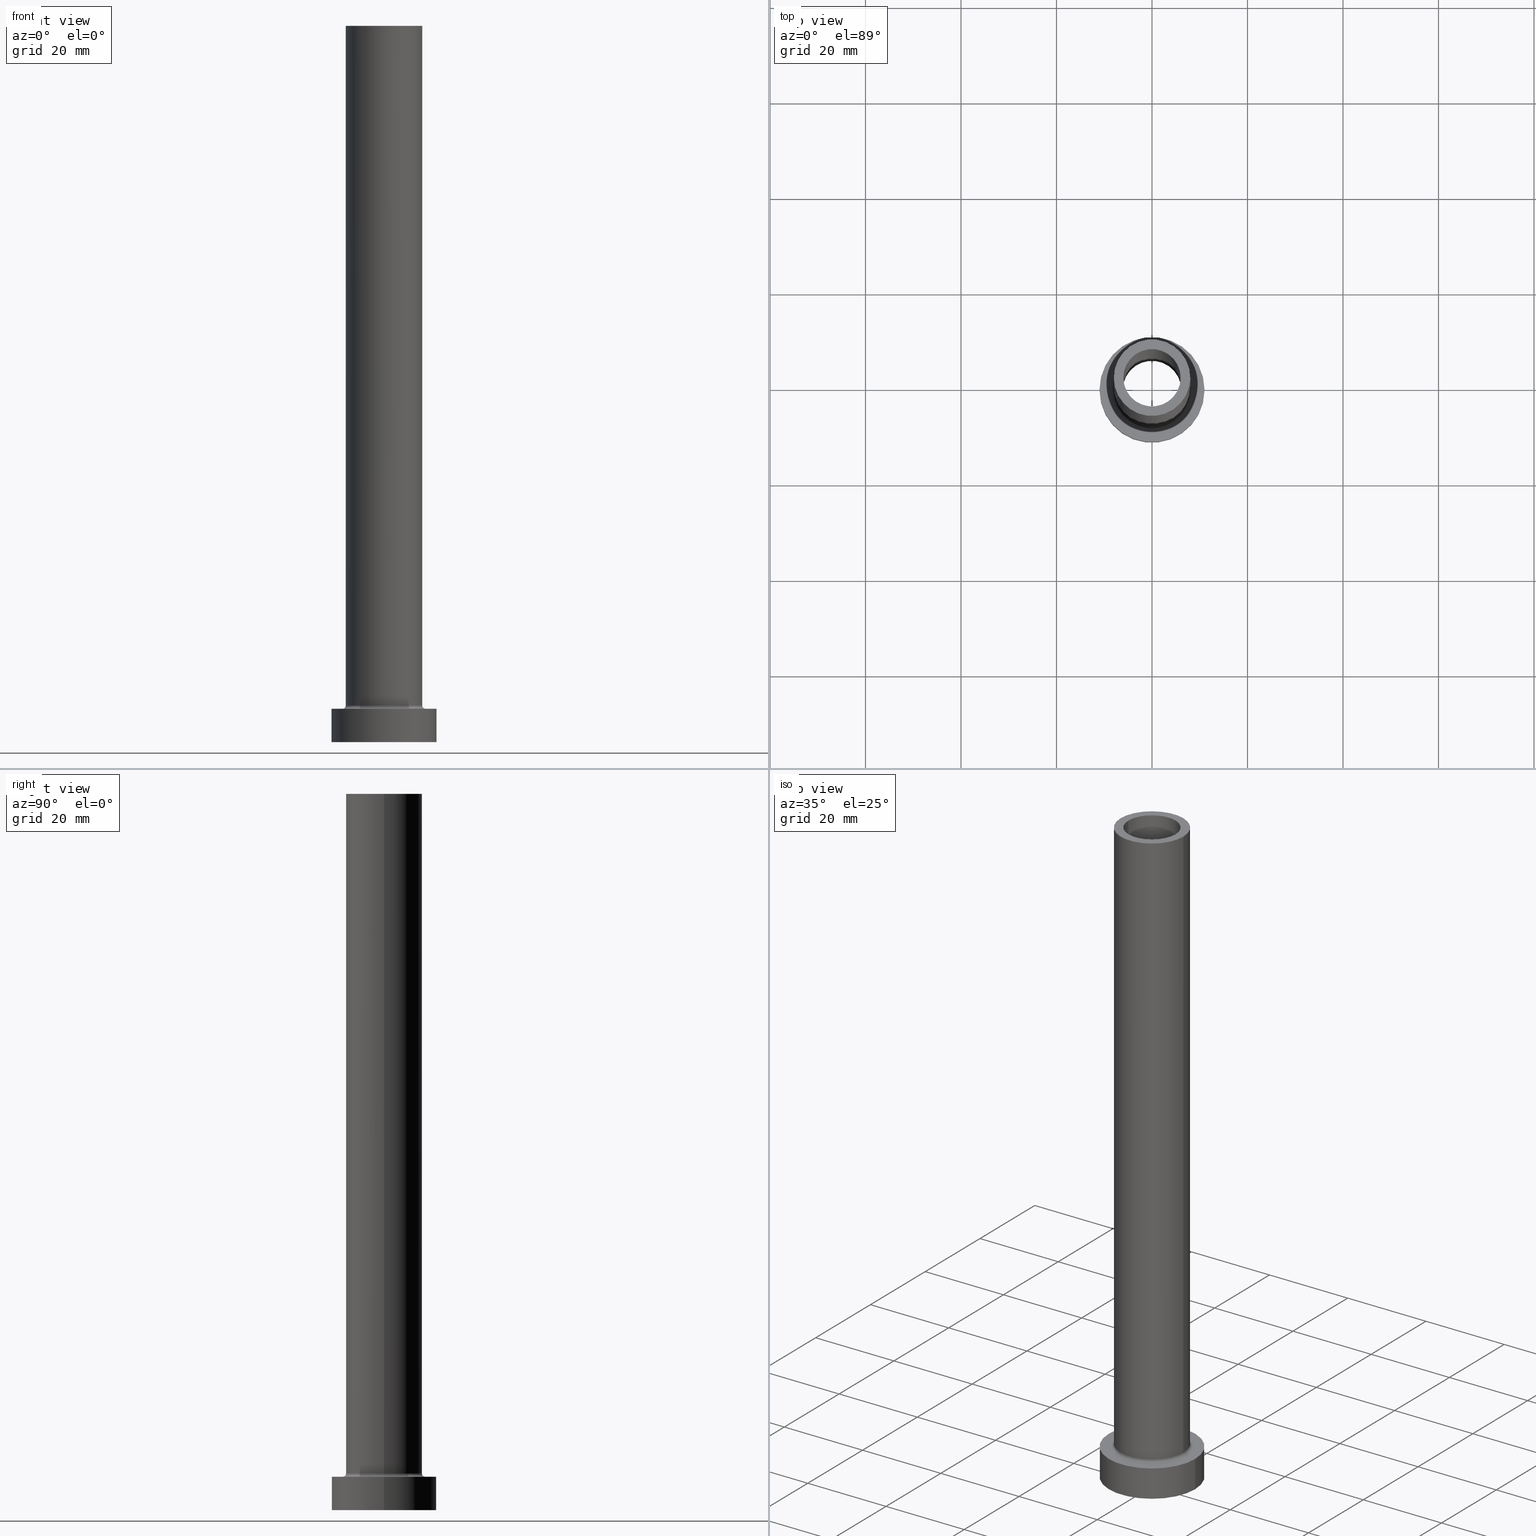
[diagram: canonical four-view strip — front | top / right | iso, engineering-drawing reading convention]
A machine part, canonical four-view strip (front | top / right | iso — engineering-drawing reading convention). The complete STEP part file that produces these views, byte-faithful:
ISO-10303-21;
HEADER;
FILE_DESCRIPTION (( 'STEP AP203' ),
    '1' );
FILE_NAME ('5809.STEP',
    '2023-02-13T07:42:43',
    ( '' ),
    ( '' ),
    'SwSTEP 2.0',
    'SolidWorks 2019',
    '' );
FILE_SCHEMA (( 'CONFIG_CONTROL_DESIGN' ));
ENDSEC;

DATA;
#1 = EDGE_LOOP ( 'NONE', ( #210, #176 ) ) ;
#2 = EDGE_CURVE ( 'NONE', #399, #138, #156, .T. ) ;
#3 = CARTESIAN_POINT ( 'NONE',  ( 0.000000000000000000, 0.000000000000000000, 0.000000000000000000 ) ) ;
#4 = ORIENTED_EDGE ( 'NONE', *, *, #118, .T. ) ;
#5 = AXIS2_PLACEMENT_3D ( 'NONE', #250, #287, #293 ) ;
#6 = CARTESIAN_POINT ( 'NONE',  ( 6.150000000000000355, 7.531577814756222064E-16, 122.3948268171890703 ) ) ;
#7 = ORIENTED_EDGE ( 'NONE', *, *, #267, .T. ) ;
#8 = AXIS2_PLACEMENT_3D ( 'NONE', #16, #80, #48 ) ;
#9 = DIRECTION ( 'NONE',  ( 0.000000000000000000, 0.000000000000000000, -1.000000000000000000 ) ) ;
#10 = ORIENTED_EDGE ( 'NONE', *, *, #434, .T. ) ;
#11 = DIRECTION ( 'NONE',  ( 0.000000000000000000, 0.000000000000000000, 1.000000000000000000 ) ) ;
#12 = CARTESIAN_POINT ( 'NONE',  ( -6.000000000000000888, 0.000000000000000000, 105.0000000000000000 ) ) ;
#13 = LOCAL_TIME ( 8, 42, 43.00000000000000000, #229 ) ;
#14 = ORIENTED_EDGE ( 'NONE', *, *, #2, .F. ) ;
#15 = CARTESIAN_POINT ( 'NONE',  ( 0.000000000000000000, 0.000000000000000000, 150.0000000000000000 ) ) ;
#16 = CARTESIAN_POINT ( 'NONE',  ( 0.000000000000000000, 0.000000000000000000, 7.000000000000000000 ) ) ;
#17 = ORIENTED_EDGE ( 'NONE', *, *, #82, .T. ) ;
#18 = AXIS2_PLACEMENT_3D ( 'NONE', #130, #425, #281 ) ;
#19 = CARTESIAN_POINT ( 'NONE',  ( 0.000000000000000000, 0.000000000000000000, 7.700000000000012612 ) ) ;
#20 = AXIS2_PLACEMENT_3D ( 'NONE', #76, #219, #253 ) ;
#21 = CARTESIAN_POINT ( 'NONE',  ( 11.00000000000000000, 1.347111479062088405E-15, 0.000000000000000000 ) ) ;
#22 = DIRECTION ( 'NONE',  ( -1.000000000000000000, 0.000000000000000000, 0.000000000000000000 ) ) ;
#23 = DIRECTION ( 'NONE',  ( 1.000000000000000000, 0.000000000000000000, 0.000000000000000000 ) ) ;
#24 = EDGE_CURVE ( 'NONE', #144, #366, #30, .T. ) ;
#25 = CARTESIAN_POINT ( 'NONE',  ( 0.000000000000000000, 0.000000000000000000, 7.700000000000012612 ) ) ;
#26 = ORIENTED_EDGE ( 'NONE', *, *, #95, .T. ) ;
#27 = APPLICATION_PROTOCOL_DEFINITION ( 'international standard', 'config_control_design', 1994, #416 ) ;
#28 = DIRECTION ( 'NONE',  ( 0.000000000000000000, 0.000000000000000000, 1.000000000000000000 ) ) ;
#29 = ORIENTED_EDGE ( 'NONE', *, *, #373, .F. ) ;
#30 = CIRCLE ( 'NONE', #189, 11.00000000000000000 ) ;
#31 = SECURITY_CLASSIFICATION_LEVEL ( 'unclassified' ) ;
#32 = DATE_AND_TIME ( #386, #242 ) ;
#33 = CIRCLE ( 'NONE', #384, 11.00000000000000000 ) ;
#34 = PERSON_AND_ORGANIZATION_ROLE ( 'design_owner' ) ;
#35 = ADVANCED_FACE ( 'NONE', ( #116 ), #259, .F. ) ;
#36 = ORIENTED_EDGE ( 'NONE', *, *, #140, .T. ) ;
#37 = DIRECTION ( 'NONE',  ( 0.000000000000000000, 0.000000000000000000, 1.000000000000000000 ) ) ;
#38 = ORIENTED_EDGE ( 'NONE', *, *, #151, .F. ) ;
#39 = DIRECTION ( 'NONE',  ( 1.224646799147353207E-16, 1.000000000000000000, -0.000000000000000000 ) ) ;
#40 = VERTEX_POINT ( 'NONE', #72 ) ;
#41 = VECTOR ( 'NONE', #55, 1000.000000000000000 ) ;
#42 = DIRECTION ( 'NONE',  ( 0.000000000000000000, 0.000000000000000000, 1.000000000000000000 ) ) ;
#43 = LINE ( 'NONE', #291, #348 ) ;
#44 = CARTESIAN_POINT ( 'NONE',  ( 8.699999999999999289, 0.000000000000000000, 7.700000000000012612 ) ) ;
#45 = CIRCLE ( 'NONE', #387, 8.000000000000000000 ) ;
#46 = DIRECTION ( 'NONE',  ( 1.000000000000000000, 0.000000000000000000, 0.000000000000000000 ) ) ;
#47 = AXIS2_PLACEMENT_3D ( 'NONE', #261, #194, #52 ) ;
#48 = DIRECTION ( 'NONE',  ( -1.000000000000000000, 0.000000000000000000, 0.000000000000000000 ) ) ;
#49 = ORIENTED_EDGE ( 'NONE', *, *, #230, .F. ) ;
#50 = CARTESIAN_POINT ( 'NONE',  ( 0.000000000000000000, 0.000000000000000000, 7.000000000000000000 ) ) ;
#51 = AXIS2_PLACEMENT_3D ( 'NONE', #241, #28, #309 ) ;
#52 = DIRECTION ( 'NONE',  ( 1.000000000000000000, 0.000000000000000000, 0.000000000000000000 ) ) ;
#53 =( GEOMETRIC_REPRESENTATION_CONTEXT ( 3 ) GLOBAL_UNCERTAINTY_ASSIGNED_CONTEXT ( ( #232 ) ) GLOBAL_UNIT_ASSIGNED_CONTEXT ( ( #126, #382, #165 ) ) REPRESENTATION_CONTEXT ( 'NONE', 'WORKASPACE' ) );
#54 = FACE_OUTER_BOUND ( 'NONE', #212, .T. ) ;
#55 = DIRECTION ( 'NONE',  ( -0.000000000000000000, -0.000000000000000000, -1.000000000000000000 ) ) ;
#56 = CIRCLE ( 'NONE', #113, 6.000000000000000888 ) ;
#57 = APPROVAL_DATE_TIME ( #275, #208 ) ;
#58 = CARTESIAN_POINT ( 'NONE',  ( 0.000000000000000000, 0.000000000000000000, 150.0000000000000000 ) ) ;
#59 = APPROVAL_STATUS ( 'not_yet_approved' ) ;
#60 = APPLICATION_PROTOCOL_DEFINITION ( 'international standard', 'config_control_design', 1994, #377 ) ;
#61 = APPROVAL_PERSON_ORGANIZATION ( #380, #208, #340 ) ;
#62 = ORIENTED_EDGE ( 'NONE', *, *, #383, .T. ) ;
#63 = CARTESIAN_POINT ( 'NONE',  ( 8.000000000000000000, 9.797174393178825657E-16, 7.700000000000012612 ) ) ;
#64 = VERTEX_POINT ( 'NONE', #148 ) ;
#65 = LINE ( 'NONE', #183, #299 ) ;
#66 = ORIENTED_EDGE ( 'NONE', *, *, #284, .T. ) ;
#67 = EDGE_CURVE ( 'NONE', #133, #314, #43, .T. ) ;
#68 = PRODUCT_DEFINITION_SHAPE ( 'NONE', 'NONE',  #283 ) ;
#69 = DIRECTION ( 'NONE',  ( 1.000000000000000000, 0.000000000000000000, 0.000000000000000000 ) ) ;
#70 = AXIS2_PLACEMENT_3D ( 'NONE', #433, #37, #402 ) ;
#71 = ORIENTED_EDGE ( 'NONE', *, *, #151, .T. ) ;
#72 = CARTESIAN_POINT ( 'NONE',  ( 8.000000000000000000, 9.797174393178825657E-16, 150.0000000000000000 ) ) ;
#73 = CC_DESIGN_APPROVAL ( #300, ( #78 ) ) ;
#74 = FACE_OUTER_BOUND ( 'NONE', #125, .T. ) ;
#75 = ORIENTED_EDGE ( 'NONE', *, *, #373, .T. ) ;
#76 = CARTESIAN_POINT ( 'NONE',  ( 0.000000000000000000, 0.000000000000000000, 150.0000000000000000 ) ) ;
#77 = LINE ( 'NONE', #449, #460 ) ;
#78 = SECURITY_CLASSIFICATION ( '', '', #31 ) ;
#79 = VERTEX_POINT ( 'NONE', #227 ) ;
#80 = DIRECTION ( 'NONE',  ( -0.000000000000000000, -0.000000000000000000, -1.000000000000000000 ) ) ;
#81 = ORIENTED_EDGE ( 'NONE', *, *, #294, .T. ) ;
#82 = EDGE_CURVE ( 'NONE', #64, #102, #315, .T. ) ;
#83 = FACE_BOUND ( 'NONE', #161, .T. ) ;
#84 = CARTESIAN_POINT ( 'NONE',  ( 0.000000000000000000, 0.000000000000000000, 7.000000000000000000 ) ) ;
#85 = CARTESIAN_POINT ( 'NONE',  ( 0.000000000000000000, 0.000000000000000000, 105.0000000000000000 ) ) ;
#86 = DATE_TIME_ROLE ( 'creation_date' ) ;
#87 = ADVANCED_FACE ( 'NONE', ( #344 ), #137, .T. ) ;
#88 = APPROVAL_DATE_TIME ( #312, #110 ) ;
#89 = VERTEX_POINT ( 'NONE', #63 ) ;
#90 = MECHANICAL_CONTEXT ( 'NONE', #377, 'mechanical' ) ;
#91 = AXIS2_PLACEMENT_3D ( 'NONE', #226, #450, #410 ) ;
#92 = DIRECTION ( 'NONE',  ( 0.000000000000000000, 0.000000000000000000, 1.000000000000000000 ) ) ;
#93 = DATE_AND_TIME ( #132, #342 ) ;
#94 = CIRCLE ( 'NONE', #51, 8.000000000000000000 ) ;
#95 = EDGE_CURVE ( 'NONE', #89, #102, #94, .T. ) ;
#96 = ORIENTED_EDGE ( 'NONE', *, *, #198, .T. ) ;
#97 = ADVANCED_FACE ( 'NONE', ( #201 ), #422, .T. ) ;
#98 = DIRECTION ( 'NONE',  ( -0.000000000000000000, -0.000000000000000000, -1.000000000000000000 ) ) ;
#99 = AXIS2_PLACEMENT_3D ( 'NONE', #327, #11, #69 ) ;
#100 = EDGE_LOOP ( 'NONE', ( #353, #454 ) ) ;
#101 = CYLINDRICAL_SURFACE ( 'NONE', #5, 6.150000000000000355 ) ;
#102 = VERTEX_POINT ( 'NONE', #457 ) ;
#103 = CARTESIAN_POINT ( 'NONE',  ( -6.150000000000000355, 0.000000000000000000, 0.000000000000000000 ) ) ;
#104 = ORIENTED_EDGE ( 'NONE', *, *, #328, .T. ) ;
#105 = CARTESIAN_POINT ( 'NONE',  ( 0.000000000000000000, 0.000000000000000000, 150.0000000000000000 ) ) ;
#106 = LINE ( 'NONE', #6, #107 ) ;
#107 = VECTOR ( 'NONE', #361, 1000.000000000000000 ) ;
#108 = ORIENTED_EDGE ( 'NONE', *, *, #127, .T. ) ;
#109 = CARTESIAN_POINT ( 'NONE',  ( 0.000000000000000000, 0.000000000000000000, 0.000000000000000000 ) ) ;
#110 = APPROVAL ( #277, 'NEUR�EN�' ) ;
#111 = EDGE_CURVE ( 'NONE', #330, #231, #336, .T. ) ;
#112 = CARTESIAN_POINT ( 'NONE',  ( -11.00000000000000000, 0.000000000000000000, 7.000000000000000000 ) ) ;
#113 = AXIS2_PLACEMENT_3D ( 'NONE', #15, #321, #46 ) ;
#114 = ORIENTED_EDGE ( 'NONE', *, *, #338, .T. ) ;
#115 = AXIS2_PLACEMENT_3D ( 'NONE', #44, #211, #9 ) ;
#116 = FACE_OUTER_BOUND ( 'NONE', #393, .T. ) ;
#117 = FACE_OUTER_BOUND ( 'NONE', #240, .T. ) ;
#118 = EDGE_CURVE ( 'NONE', #381, #408, #135, .T. ) ;
#119 = DIRECTION ( 'NONE',  ( 0.000000000000000000, 0.000000000000000000, 1.000000000000000000 ) ) ;
#120 = EDGE_CURVE ( 'NONE', #144, #317, #419, .T. ) ;
#121 = DIRECTION ( 'NONE',  ( -0.000000000000000000, -0.000000000000000000, -1.000000000000000000 ) ) ;
#122 = AXIS2_PLACEMENT_3D ( 'NONE', #109, #42, #437 ) ;
#123 = DIRECTION ( 'NONE',  ( 0.000000000000000000, 0.000000000000000000, 1.000000000000000000 ) ) ;
#124 = DIRECTION ( 'NONE',  ( 0.000000000000000000, 0.000000000000000000, 1.000000000000000000 ) ) ;
#125 = EDGE_LOOP ( 'NONE', ( #62, #288 ) ) ;
#126 =( LENGTH_UNIT ( ) NAMED_UNIT ( * ) SI_UNIT ( .MILLI., .METRE. ) );
#127 = EDGE_CURVE ( 'NONE', #102, #89, #45, .T. ) ;
#128 = CARTESIAN_POINT ( 'NONE',  ( 0.000000000000000000, 0.000000000000000000, 105.0000000000000000 ) ) ;
#129 = CIRCLE ( 'NONE', #400, 8.699999999999999289 ) ;
#130 = CARTESIAN_POINT ( 'NONE',  ( 0.000000000000000000, 0.000000000000000000, 150.0000000000000000 ) ) ;
#131 = EDGE_CURVE ( 'NONE', #133, #399, #184, .T. ) ;
#132 = CALENDAR_DATE ( 2023, 13, 2 ) ;
#133 = VERTEX_POINT ( 'NONE', #323 ) ;
#134 = VECTOR ( 'NONE', #341, 1000.000000000000000 ) ;
#135 = CIRCLE ( 'NONE', #182, 6.150000000000000355 ) ;
#136 = COORDINATED_UNIVERSAL_TIME_OFFSET ( 1, 0, .AHEAD. ) ;
#137 = CYLINDRICAL_SURFACE ( 'NONE', #18, 8.000000000000000000 ) ;
#138 = VERTEX_POINT ( 'NONE', #12 ) ;
#139 = ADVANCED_FACE ( 'NONE', ( #147 ), #101, .F. ) ;
#140 = EDGE_CURVE ( 'NONE', #146, #356, #197, .T. ) ;
#141 = CARTESIAN_POINT ( 'NONE',  ( 0.000000000000000000, 0.000000000000000000, 0.000000000000000000 ) ) ;
#142 = CC_DESIGN_PERSON_AND_ORGANIZATION_ASSIGNMENT ( #417, #426, ( #283 ) ) ;
#143 = CC_DESIGN_APPROVAL ( #110, ( #283 ) ) ;
#144 = VERTEX_POINT ( 'NONE', #439 ) ;
#145 = PLANE ( 'NONE',  #333 ) ;
#146 = VERTEX_POINT ( 'NONE', #318 ) ;
#147 = FACE_OUTER_BOUND ( 'NONE', #372, .T. ) ;
#148 = CARTESIAN_POINT ( 'NONE',  ( -8.000000000000000000, 0.000000000000000000, 150.0000000000000000 ) ) ;
#149 = FACE_OUTER_BOUND ( 'NONE', #269, .T. ) ;
#150 = CIRCLE ( 'NONE', #122, 11.00000000000000000 ) ;
#151 = EDGE_CURVE ( 'NONE', #399, #133, #56, .T. ) ;
#152 = DIRECTION ( 'NONE',  ( 1.000000000000000000, 0.000000000000000000, 0.000000000000000000 ) ) ;
#153 = FACE_OUTER_BOUND ( 'NONE', #216, .T. ) ;
#154 = CARTESIAN_POINT ( 'NONE',  ( -11.00000000000000000, 0.000000000000000000, 7.000000000000000000 ) ) ;
#155 = EDGE_LOOP ( 'NONE', ( #237, #179, #81, #29 ) ) ;
#156 = LINE ( 'NONE', #403, #289 ) ;
#157 = DIRECTION ( 'NONE',  ( 1.000000000000000000, 0.000000000000000000, 0.000000000000000000 ) ) ;
#158 = ORIENTED_EDGE ( 'NONE', *, *, #168, .T. ) ;
#159 = CIRCLE ( 'NONE', #115, 0.7000000000000000666 ) ;
#160 = CARTESIAN_POINT ( 'NONE',  ( -6.000000000000000888, 0.000000000000000000, 150.0000000000000000 ) ) ;
#161 = EDGE_LOOP ( 'NONE', ( #359, #7 ) ) ;
#162 = CYLINDRICAL_SURFACE ( 'NONE', #178, 11.00000000000000000 ) ;
#163 = CARTESIAN_POINT ( 'NONE',  ( 0.000000000000000000, 0.000000000000000000, 150.0000000000000000 ) ) ;
#164 = APPROVAL_PERSON_ORGANIZATION ( #385, #300, #203 ) ;
#165 =( NAMED_UNIT ( * ) SI_UNIT ( $, .STERADIAN. ) SOLID_ANGLE_UNIT ( ) );
#166 = DIRECTION ( 'NONE',  ( 0.000000000000000000, 0.000000000000000000, 1.000000000000000000 ) ) ;
#167 = ORIENTED_EDGE ( 'NONE', *, *, #328, .F. ) ;
#168 = EDGE_CURVE ( 'NONE', #102, #356, #444, .T. ) ;
#169 = DATE_AND_TIME ( #343, #13 ) ;
#170 = DIRECTION ( 'NONE',  ( 1.000000000000000000, 0.000000000000000000, 0.000000000000000000 ) ) ;
#171 = APPROVAL_DATE_TIME ( #32, #300 ) ;
#172 = ORIENTED_EDGE ( 'NONE', *, *, #456, .F. ) ;
#173 = CALENDAR_DATE ( 2023, 13, 2 ) ;
#174 = ORIENTED_EDGE ( 'NONE', *, *, #67, .F. ) ;
#175 = CARTESIAN_POINT ( 'NONE',  ( 0.000000000000000000, 0.000000000000000000, 7.700000000000012612 ) ) ;
#176 = ORIENTED_EDGE ( 'NONE', *, *, #111, .F. ) ;
#177 = DIRECTION ( 'NONE',  ( -0.000000000000000000, -0.000000000000000000, -1.000000000000000000 ) ) ;
#178 = AXIS2_PLACEMENT_3D ( 'NONE', #50, #191, #224 ) ;
#179 = ORIENTED_EDGE ( 'NONE', *, *, #120, .T. ) ;
#180 = CYLINDRICAL_SURFACE ( 'NONE', #320, 6.150000000000000355 ) ;
#181 = DIRECTION ( 'NONE',  ( 0.000000000000000000, 0.000000000000000000, -1.000000000000000000 ) ) ;
#182 = AXIS2_PLACEMENT_3D ( 'NONE', #128, #92, #235 ) ;
#183 = CARTESIAN_POINT ( 'NONE',  ( -6.150000000000000355, 0.000000000000000000, 122.3948268171890703 ) ) ;
#184 = CIRCLE ( 'NONE', #365, 6.000000000000000888 ) ;
#185 = DIRECTION ( 'NONE',  ( 1.000000000000000000, 0.000000000000000000, 0.000000000000000000 ) ) ;
#186 = CARTESIAN_POINT ( 'NONE',  ( 0.000000000000000000, 0.000000000000000000, 0.000000000000000000 ) ) ;
#187 = ORIENTED_EDGE ( 'NONE', *, *, #217, .T. ) ;
#188 = CARTESIAN_POINT ( 'NONE',  ( 0.000000000000000000, 0.000000000000000000, 7.000000000000000000 ) ) ;
#189 = AXIS2_PLACEMENT_3D ( 'NONE', #188, #445, #152 ) ;
#190 = DESIGN_CONTEXT ( 'detailed design', #416, 'design' ) ;
#191 = DIRECTION ( 'NONE',  ( -0.000000000000000000, -0.000000000000000000, -1.000000000000000000 ) ) ;
#192 = DIRECTION ( 'NONE',  ( 1.000000000000000000, 0.000000000000000000, 0.000000000000000000 ) ) ;
#193 = TOROIDAL_SURFACE ( 'NONE', #438, 8.699999999999999289, 0.6999999999999999556 ) ;
#194 = DIRECTION ( 'NONE',  ( 0.000000000000000000, 0.000000000000000000, 1.000000000000000000 ) ) ;
#195 = DIRECTION ( 'NONE',  ( 0.000000000000000000, 0.000000000000000000, -1.000000000000000000 ) ) ;
#196 = APPROVAL_STATUS ( 'not_yet_approved' ) ;
#197 = CIRCLE ( 'NONE', #255, 8.699999999999999289 ) ;
#198 = EDGE_CURVE ( 'NONE', #40, #64, #398, .T. ) ;
#199 = DIRECTION ( 'NONE',  ( -0.000000000000000000, -0.000000000000000000, -1.000000000000000000 ) ) ;
#200 = PERSON_AND_ORGANIZATION ( #228, #451 ) ;
#201 = FACE_OUTER_BOUND ( 'NONE', #420, .T. ) ;
#202 = AXIS2_PLACEMENT_3D ( 'NONE', #204, #352, #428 ) ;
#203 = APPROVAL_ROLE ( '' ) ;
#204 = CARTESIAN_POINT ( 'NONE',  ( 0.000000000000000000, 0.000000000000000000, 150.0000000000000000 ) ) ;
#205 = LOCAL_TIME ( 8, 42, 43.00000000000000000, #136 ) ;
#206 = CARTESIAN_POINT ( 'NONE',  ( 11.00000000000000000, 1.347111479062088405E-15, 7.000000000000000000 ) ) ;
#207 = ORIENTED_EDGE ( 'NONE', *, *, #131, .T. ) ;
#208 = APPROVAL ( #196, 'NEUR�EN�' ) ;
#209 = FACE_OUTER_BOUND ( 'NONE', #245, .T. ) ;
#210 = ORIENTED_EDGE ( 'NONE', *, *, #338, .F. ) ;
#211 = DIRECTION ( 'NONE',  ( 0.000000000000000000, -1.000000000000000000, 0.000000000000000000 ) ) ;
#212 = EDGE_LOOP ( 'NONE', ( #71, #427, #172, #14 ) ) ;
#213 = PRODUCT_RELATED_PRODUCT_CATEGORY ( 'detail', '', ( #252 ) ) ;
#214 = AXIS2_PLACEMENT_3D ( 'NONE', #175, #397, #185 ) ;
#215 = DIRECTION ( 'NONE',  ( -1.000000000000000000, 0.000000000000000000, 0.000000000000000000 ) ) ;
#216 = EDGE_LOOP ( 'NONE', ( #413, #369, #322, #49 ) ) ;
#217 = EDGE_CURVE ( 'NONE', #89, #146, #159, .T. ) ;
#218 = DIRECTION ( 'NONE',  ( 1.000000000000000000, 0.000000000000000000, -0.000000000000000000 ) ) ;
#219 = DIRECTION ( 'NONE',  ( 0.000000000000000000, 0.000000000000000000, 1.000000000000000000 ) ) ;
#220 = ORIENTED_EDGE ( 'NONE', *, *, #316, .F. ) ;
#221 = DIRECTION ( 'NONE',  ( 1.000000000000000000, 0.000000000000000000, 0.000000000000000000 ) ) ;
#222 = EDGE_LOOP ( 'NONE', ( #220, #429 ) ) ;
#223 = FACE_OUTER_BOUND ( 'NONE', #100, .T. ) ;
#224 = DIRECTION ( 'NONE',  ( -1.000000000000000000, 0.000000000000000000, 0.000000000000000000 ) ) ;
#225 = APPROVAL_PERSON_ORGANIZATION ( #347, #110, #453 ) ;
#226 = CARTESIAN_POINT ( 'NONE',  ( 0.000000000000000000, 0.000000000000000000, 0.000000000000000000 ) ) ;
#227 = CARTESIAN_POINT ( 'NONE',  ( -11.00000000000000000, 0.000000000000000000, 0.000000000000000000 ) ) ;
#228 = PERSON ( 'NEUR�EN�', 'NEUR�EN�', 'NEUR�EN�', ('NEUR�EN�'), ('NEUR�EN�'), ('NEUR�EN�') ) ;
#229 = COORDINATED_UNIVERSAL_TIME_OFFSET ( 1, 0, .AHEAD. ) ;
#230 = EDGE_CURVE ( 'NONE', #408, #231, #65, .T. ) ;
#231 = VERTEX_POINT ( 'NONE', #103 ) ;
#232 = UNCERTAINTY_MEASURE_WITH_UNIT (LENGTH_MEASURE( 1.000000000000000082E-05 ), #126, 'distance_accuracy_value', 'NONE');
#233 = AXIS2_PLACEMENT_3D ( 'NONE', #163, #448, #296 ) ;
#234 = PERSON_AND_ORGANIZATION ( #228, #451 ) ;
#235 = DIRECTION ( 'NONE',  ( 1.000000000000000000, 0.000000000000000000, 0.000000000000000000 ) ) ;
#236 = DATE_TIME_ROLE ( 'classification_date' ) ;
#237 = ORIENTED_EDGE ( 'NONE', *, *, #24, .F. ) ;
#238 = ADVANCED_FACE ( 'NONE', ( #246, #74 ), #145, .T. ) ;
#239 = PERSON_AND_ORGANIZATION ( #228, #451 ) ;
#240 = EDGE_LOOP ( 'NONE', ( #286, #396, #187, #319 ) ) ;
#241 = CARTESIAN_POINT ( 'NONE',  ( 0.000000000000000000, 0.000000000000000000, 7.700000000000012612 ) ) ;
#242 = LOCAL_TIME ( 8, 42, 43.00000000000000000, #351 ) ;
#243 = ORIENTED_EDGE ( 'NONE', *, *, #383, .F. ) ;
#244 = DIRECTION ( 'NONE',  ( 1.000000000000000000, 0.000000000000000000, 0.000000000000000000 ) ) ;
#245 = EDGE_LOOP ( 'NONE', ( #104, #96 ) ) ;
#246 = FACE_BOUND ( 'NONE', #247, .T. ) ;
#247 = EDGE_LOOP ( 'NONE', ( #36, #350 ) ) ;
#248 = DIRECTION ( 'NONE',  ( 0.000000000000000000, 0.000000000000000000, -1.000000000000000000 ) ) ;
#249 = AXIS2_PLACEMENT_3D ( 'NONE', #375, #265, #23 ) ;
#250 = CARTESIAN_POINT ( 'NONE',  ( 0.000000000000000000, 0.000000000000000000, 122.3948268171890703 ) ) ;
#251 = DIRECTION ( 'NONE',  ( 1.000000000000000000, 0.000000000000000000, 0.000000000000000000 ) ) ;
#252 = PRODUCT ( '5809', '5809', '', ( #90 ) ) ;
#253 = DIRECTION ( 'NONE',  ( 1.000000000000000000, 0.000000000000000000, -0.000000000000000000 ) ) ;
#254 = CC_DESIGN_PERSON_AND_ORGANIZATION_ASSIGNMENT ( #239, #459, ( #78 ) ) ;
#255 = AXIS2_PLACEMENT_3D ( 'NONE', #364, #177, #244 ) ;
#256 = DIRECTION ( 'NONE',  ( -0.000000000000000000, -0.000000000000000000, -1.000000000000000000 ) ) ;
#257 = ORIENTED_EDGE ( 'NONE', *, *, #82, .F. ) ;
#258 = CIRCLE ( 'NONE', #233, 8.000000000000000000 ) ;
#259 = CYLINDRICAL_SURFACE ( 'NONE', #324, 6.000000000000000888 ) ;
#260 = MANIFOLD_SOLID_BREP ( 'Odebrat vysunut�m4', #394 ) ;
#261 = CARTESIAN_POINT ( 'NONE',  ( 0.000000000000000000, 0.000000000000000000, 105.0000000000000000 ) ) ;
#262 = ADVANCED_FACE ( 'NONE', ( #149 ), #423, .F. ) ;
#263 = DIRECTION ( 'NONE',  ( 0.000000000000000000, 0.000000000000000000, -1.000000000000000000 ) ) ;
#264 = LINE ( 'NONE', #154, #41 ) ;
#265 = DIRECTION ( 'NONE',  ( 0.000000000000000000, 0.000000000000000000, 1.000000000000000000 ) ) ;
#266 = PRODUCT_DEFINITION_FORMATION_WITH_SPECIFIED_SOURCE ( 'LIBOVOLN�', '', #252, .NOT_KNOWN. ) ;
#267 = EDGE_CURVE ( 'NONE', #314, #138, #304, .T. ) ;
#268 = CARTESIAN_POINT ( 'NONE',  ( -6.150000000000000355, 0.000000000000000000, 105.0000000000000000 ) ) ;
#269 = EDGE_LOOP ( 'NONE', ( #432, #158, #435, #307 ) ) ;
#270 = ADVANCED_FACE ( 'NONE', ( #153 ), #180, .F. ) ;
#271 = DIRECTION ( 'NONE',  ( 1.000000000000000000, 0.000000000000000000, 0.000000000000000000 ) ) ;
#272 = EDGE_CURVE ( 'NONE', #381, #330, #106, .T. ) ;
#273 = DIRECTION ( 'NONE',  ( 1.000000000000000000, 0.000000000000000000, 0.000000000000000000 ) ) ;
#274 = CC_DESIGN_DATE_AND_TIME_ASSIGNMENT ( #93, #236, ( #78 ) ) ;
#275 = DATE_AND_TIME ( #455, #326 ) ;
#276 = AXIS2_PLACEMENT_3D ( 'NONE', #186, #121, #329 ) ;
#277 = APPROVAL_STATUS ( 'not_yet_approved' ) ;
#278 = SHAPE_DEFINITION_REPRESENTATION ( #68, #370 ) ;
#279 = CARTESIAN_POINT ( 'NONE',  ( -8.000000000000000000, 0.000000000000000000, 150.0000000000000000 ) ) ;
#280 = ORIENTED_EDGE ( 'NONE', *, *, #131, .F. ) ;
#281 = DIRECTION ( 'NONE',  ( -1.000000000000000000, 0.000000000000000000, 0.000000000000000000 ) ) ;
#282 = ORIENTED_EDGE ( 'NONE', *, *, #2, .T. ) ;
#283 = PRODUCT_DEFINITION ( 'NEZN�M�', '', #266, #190 ) ;
#284 = EDGE_CURVE ( 'NONE', #79, #317, #150, .T. ) ;
#285 = CYLINDRICAL_SURFACE ( 'NONE', #8, 11.00000000000000000 ) ;
#286 = ORIENTED_EDGE ( 'NONE', *, *, #168, .F. ) ;
#287 = DIRECTION ( 'NONE',  ( 0.000000000000000000, 0.000000000000000000, -1.000000000000000000 ) ) ;
#288 = ORIENTED_EDGE ( 'NONE', *, *, #24, .T. ) ;
#289 = VECTOR ( 'NONE', #181, 1000.000000000000000 ) ;
#290 = CARTESIAN_POINT ( 'NONE',  ( 0.000000000000000000, 0.000000000000000000, 122.3948268171890703 ) ) ;
#291 = CARTESIAN_POINT ( 'NONE',  ( 6.000000000000000888, 7.347880794884119736E-16, 150.0000000000000000 ) ) ;
#292 = AXIS2_PLACEMENT_3D ( 'NONE', #85, #119, #331 ) ;
#293 = DIRECTION ( 'NONE',  ( -1.000000000000000000, 0.000000000000000000, 0.000000000000000000 ) ) ;
#294 = EDGE_CURVE ( 'NONE', #317, #79, #33, .T. ) ;
#295 = DIRECTION ( 'NONE',  ( 0.000000000000000000, 0.000000000000000000, -1.000000000000000000 ) ) ;
#296 = DIRECTION ( 'NONE',  ( 1.000000000000000000, 0.000000000000000000, 0.000000000000000000 ) ) ;
#297 = EDGE_LOOP ( 'NONE', ( #362, #10, #26, #257 ) ) ;
#298 = PLANE ( 'NONE',  #91 ) ;
#299 = VECTOR ( 'NONE', #357, 1000.000000000000000 ) ;
#300 = APPROVAL ( #59, 'NEUR�EN�' ) ;
#301 = PLANE ( 'NONE',  #292 ) ;
#302 = FACE_OUTER_BOUND ( 'NONE', #222, .T. ) ;
#303 = FACE_BOUND ( 'NONE', #1, .T. ) ;
#304 = CIRCLE ( 'NONE', #99, 6.000000000000000888 ) ;
#305 = ADVANCED_FACE ( 'NONE', ( #440, #209 ), #405, .T. ) ;
#306 = DIRECTION ( 'NONE',  ( 1.000000000000000000, 0.000000000000000000, 0.000000000000000000 ) ) ;
#307 = ORIENTED_EDGE ( 'NONE', *, *, #217, .F. ) ;
#308 = COORDINATED_UNIVERSAL_TIME_OFFSET ( 1, 0, .AHEAD. ) ;
#309 = DIRECTION ( 'NONE',  ( 1.000000000000000000, 0.000000000000000000, 0.000000000000000000 ) ) ;
#310 = PERSON_AND_ORGANIZATION_ROLE ( 'creator' ) ;
#311 = AXIS2_PLACEMENT_3D ( 'NONE', #3, #124, #271 ) ;
#312 = DATE_AND_TIME ( #173, #205 ) ;
#313 = ADVANCED_FACE ( 'NONE', ( #354 ), #285, .T. ) ;
#314 = VERTEX_POINT ( 'NONE', #378 ) ;
#315 = LINE ( 'NONE', #279, #418 ) ;
#316 = EDGE_CURVE ( 'NONE', #408, #381, #390, .T. ) ;
#317 = VERTEX_POINT ( 'NONE', #21 ) ;
#318 = CARTESIAN_POINT ( 'NONE',  ( 8.699999999999999289, 0.000000000000000000, 7.000000000000006217 ) ) ;
#319 = ORIENTED_EDGE ( 'NONE', *, *, #346, .F. ) ;
#320 = AXIS2_PLACEMENT_3D ( 'NONE', #290, #295, #215 ) ;
#321 = DIRECTION ( 'NONE',  ( 0.000000000000000000, 0.000000000000000000, 1.000000000000000000 ) ) ;
#322 = ORIENTED_EDGE ( 'NONE', *, *, #111, .T. ) ;
#323 = CARTESIAN_POINT ( 'NONE',  ( 6.000000000000000888, 7.347880794884119736E-16, 150.0000000000000000 ) ) ;
#324 = AXIS2_PLACEMENT_3D ( 'NONE', #105, #248, #401 ) ;
#325 = DIRECTION ( 'NONE',  ( 0.000000000000000000, 0.000000000000000000, 1.000000000000000000 ) ) ;
#326 = LOCAL_TIME ( 8, 42, 43.00000000000000000, #308 ) ;
#327 = CARTESIAN_POINT ( 'NONE',  ( 0.000000000000000000, 0.000000000000000000, 105.0000000000000000 ) ) ;
#328 = EDGE_CURVE ( 'NONE', #64, #40, #258, .T. ) ;
#329 = DIRECTION ( 'NONE',  ( 1.000000000000000000, 0.000000000000000000, 0.000000000000000000 ) ) ;
#330 = VERTEX_POINT ( 'NONE', #441 ) ;
#331 = DIRECTION ( 'NONE',  ( 1.000000000000000000, 0.000000000000000000, -0.000000000000000000 ) ) ;
#332 = DIRECTION ( 'NONE',  ( -0.000000000000000000, -0.000000000000000000, -1.000000000000000000 ) ) ;
#333 = AXIS2_PLACEMENT_3D ( 'NONE', #407, #325, #218 ) ;
#334 = CC_DESIGN_SECURITY_CLASSIFICATION ( #78, ( #266 ) ) ;
#335 = DIRECTION ( 'NONE',  ( 0.000000000000000000, 0.000000000000000000, 1.000000000000000000 ) ) ;
#336 = CIRCLE ( 'NONE', #414, 6.150000000000000355 ) ;
#337 = CARTESIAN_POINT ( 'NONE',  ( -8.699999999999999289, 1.065442715258197248E-15, 7.000000000000006217 ) ) ;
#338 = EDGE_CURVE ( 'NONE', #231, #330, #409, .T. ) ;
#339 = CC_DESIGN_PERSON_AND_ORGANIZATION_ASSIGNMENT ( #421, #310, ( #266 ) ) ;
#340 = APPROVAL_ROLE ( '' ) ;
#341 = DIRECTION ( 'NONE',  ( -0.000000000000000000, -0.000000000000000000, -1.000000000000000000 ) ) ;
#342 = LOCAL_TIME ( 8, 42, 43.00000000000000000, #424 ) ;
#343 = CALENDAR_DATE ( 2023, 13, 2 ) ;
#344 = FACE_OUTER_BOUND ( 'NONE', #297, .T. ) ;
#345 = ORIENTED_EDGE ( 'NONE', *, *, #230, .T. ) ;
#346 = EDGE_CURVE ( 'NONE', #356, #146, #129, .T. ) ;
#347 = PERSON_AND_ORGANIZATION ( #228, #451 ) ;
#348 = VECTOR ( 'NONE', #263, 1000.000000000000000 ) ;
#349 = DIRECTION ( 'NONE',  ( 0.000000000000000000, 0.000000000000000000, 1.000000000000000000 ) ) ;
#350 = ORIENTED_EDGE ( 'NONE', *, *, #346, .T. ) ;
#351 = COORDINATED_UNIVERSAL_TIME_OFFSET ( 1, 0, .AHEAD. ) ;
#352 = DIRECTION ( 'NONE',  ( -0.000000000000000000, -0.000000000000000000, -1.000000000000000000 ) ) ;
#353 = ORIENTED_EDGE ( 'NONE', *, *, #284, .F. ) ;
#354 = FACE_OUTER_BOUND ( 'NONE', #411, .T. ) ;
#355 = ADVANCED_FACE ( 'NONE', ( #303, #223 ), #298, .F. ) ;
#356 = VERTEX_POINT ( 'NONE', #337 ) ;
#357 = DIRECTION ( 'NONE',  ( 0.000000000000000000, 0.000000000000000000, -1.000000000000000000 ) ) ;
#358 = AXIS2_PLACEMENT_3D ( 'NONE', #395, #39, #431 ) ;
#359 = ORIENTED_EDGE ( 'NONE', *, *, #456, .T. ) ;
#360 = CIRCLE ( 'NONE', #249, 6.000000000000000888 ) ;
#361 = DIRECTION ( 'NONE',  ( 0.000000000000000000, 0.000000000000000000, -1.000000000000000000 ) ) ;
#362 = ORIENTED_EDGE ( 'NONE', *, *, #198, .F. ) ;
#363 = DIRECTION ( 'NONE',  ( 0.000000000000000000, 0.000000000000000000, 1.000000000000000000 ) ) ;
#364 = CARTESIAN_POINT ( 'NONE',  ( 0.000000000000000000, 0.000000000000000000, 7.000000000000000000 ) ) ;
#365 = AXIS2_PLACEMENT_3D ( 'NONE', #58, #349, #170 ) ;
#366 = VERTEX_POINT ( 'NONE', #112 ) ;
#367 = CC_DESIGN_APPROVAL ( #208, ( #266 ) ) ;
#368 = CYLINDRICAL_SURFACE ( 'NONE', #376, 6.000000000000000888 ) ;
#369 = ORIENTED_EDGE ( 'NONE', *, *, #272, .T. ) ;
#370 = ADVANCED_BREP_SHAPE_REPRESENTATION ( '5809', ( #260, #311 ), #53 ) ;
#371 = FACE_OUTER_BOUND ( 'NONE', #155, .T. ) ;
#372 = EDGE_LOOP ( 'NONE', ( #374, #4, #345, #114 ) ) ;
#373 = EDGE_CURVE ( 'NONE', #366, #79, #264, .T. ) ;
#374 = ORIENTED_EDGE ( 'NONE', *, *, #272, .F. ) ;
#375 = CARTESIAN_POINT ( 'NONE',  ( 0.000000000000000000, 0.000000000000000000, 105.0000000000000000 ) ) ;
#376 = AXIS2_PLACEMENT_3D ( 'NONE', #412, #195, #22 ) ;
#377 = APPLICATION_CONTEXT ( 'configuration controlled 3d designs of mechanical parts and assemblies' ) ;
#378 = CARTESIAN_POINT ( 'NONE',  ( 6.000000000000000888, 7.347880794884119736E-16, 105.0000000000000000 ) ) ;
#379 = CC_DESIGN_DATE_AND_TIME_ASSIGNMENT ( #169, #86, ( #283 ) ) ;
#380 = PERSON_AND_ORGANIZATION ( #228, #451 ) ;
#381 = VERTEX_POINT ( 'NONE', #447 ) ;
#382 =( NAMED_UNIT ( * ) PLANE_ANGLE_UNIT ( ) SI_UNIT ( $, .RADIAN. ) );
#383 = EDGE_CURVE ( 'NONE', #366, #144, #430, .T. ) ;
#384 = AXIS2_PLACEMENT_3D ( 'NONE', #141, #363, #251 ) ;
#385 = PERSON_AND_ORGANIZATION ( #228, #451 ) ;
#386 = CALENDAR_DATE ( 2023, 13, 2 ) ;
#387 = AXIS2_PLACEMENT_3D ( 'NONE', #25, #166, #306 ) ;
#388 = CARTESIAN_POINT ( 'NONE',  ( 0.000000000000000000, 0.000000000000000000, 0.000000000000000000 ) ) ;
#389 = ORIENTED_EDGE ( 'NONE', *, *, #120, .F. ) ;
#390 = CIRCLE ( 'NONE', #47, 6.150000000000000355 ) ;
#391 = ADVANCED_FACE ( 'NONE', ( #54 ), #368, .F. ) ;
#392 = ADVANCED_FACE ( 'NONE', ( #371 ), #162, .T. ) ;
#393 = EDGE_LOOP ( 'NONE', ( #174, #207, #282, #436 ) ) ;
#394 = CLOSED_SHELL ( 'NONE', ( #391, #270, #262, #87, #392, #313, #238, #355, #97, #305, #406, #139, #404, #35 ) ) ;
#395 = CARTESIAN_POINT ( 'NONE',  ( -8.699999999999999289, 1.065442715258197248E-15, 7.700000000000012612 ) ) ;
#396 = ORIENTED_EDGE ( 'NONE', *, *, #95, .F. ) ;
#397 = DIRECTION ( 'NONE',  ( 0.000000000000000000, 0.000000000000000000, 1.000000000000000000 ) ) ;
#398 = CIRCLE ( 'NONE', #70, 8.000000000000000000 ) ;
#399 = VERTEX_POINT ( 'NONE', #160 ) ;
#400 = AXIS2_PLACEMENT_3D ( 'NONE', #84, #256, #157 ) ;
#401 = DIRECTION ( 'NONE',  ( -1.000000000000000000, 0.000000000000000000, 0.000000000000000000 ) ) ;
#402 = DIRECTION ( 'NONE',  ( 1.000000000000000000, 0.000000000000000000, 0.000000000000000000 ) ) ;
#403 = CARTESIAN_POINT ( 'NONE',  ( -6.000000000000000888, 0.000000000000000000, 150.0000000000000000 ) ) ;
#404 = ADVANCED_FACE ( 'NONE', ( #83, #302 ), #301, .F. ) ;
#405 = PLANE ( 'NONE',  #20 ) ;
#406 = ADVANCED_FACE ( 'NONE', ( #117 ), #193, .F. ) ;
#407 = CARTESIAN_POINT ( 'NONE',  ( 0.000000000000000000, 0.000000000000000000, 7.000000000000000000 ) ) ;
#408 = VERTEX_POINT ( 'NONE', #268 ) ;
#409 = CIRCLE ( 'NONE', #276, 6.150000000000000355 ) ;
#410 = DIRECTION ( 'NONE',  ( 1.000000000000000000, 0.000000000000000000, -0.000000000000000000 ) ) ;
#411 = EDGE_LOOP ( 'NONE', ( #389, #243, #75, #66 ) ) ;
#412 = CARTESIAN_POINT ( 'NONE',  ( 0.000000000000000000, 0.000000000000000000, 150.0000000000000000 ) ) ;
#413 = ORIENTED_EDGE ( 'NONE', *, *, #316, .T. ) ;
#414 = AXIS2_PLACEMENT_3D ( 'NONE', #388, #98, #273 ) ;
#415 = CARTESIAN_POINT ( 'NONE',  ( 0.000000000000000000, 0.000000000000000000, 7.000000000000000000 ) ) ;
#416 = APPLICATION_CONTEXT ( 'configuration controlled 3d designs of mechanical parts and assemblies' ) ;
#417 = PERSON_AND_ORGANIZATION ( #228, #451 ) ;
#418 = VECTOR ( 'NONE', #199, 1000.000000000000000 ) ;
#419 = LINE ( 'NONE', #206, #134 ) ;
#420 = EDGE_LOOP ( 'NONE', ( #442, #167, #17, #108 ) ) ;
#421 = PERSON_AND_ORGANIZATION ( #228, #451 ) ;
#422 = CYLINDRICAL_SURFACE ( 'NONE', #202, 8.000000000000000000 ) ;
#423 = TOROIDAL_SURFACE ( 'NONE', #214, 8.699999999999999289, 0.6999999999999999556 ) ;
#424 = COORDINATED_UNIVERSAL_TIME_OFFSET ( 1, 0, .AHEAD. ) ;
#425 = DIRECTION ( 'NONE',  ( -0.000000000000000000, -0.000000000000000000, -1.000000000000000000 ) ) ;
#426 = PERSON_AND_ORGANIZATION_ROLE ( 'creator' ) ;
#427 = ORIENTED_EDGE ( 'NONE', *, *, #67, .T. ) ;
#428 = DIRECTION ( 'NONE',  ( -1.000000000000000000, 0.000000000000000000, 0.000000000000000000 ) ) ;
#429 = ORIENTED_EDGE ( 'NONE', *, *, #118, .F. ) ;
#430 = CIRCLE ( 'NONE', #446, 11.00000000000000000 ) ;
#431 = DIRECTION ( 'NONE',  ( -1.000000000000000000, 1.224646799147353207E-16, 0.000000000000000000 ) ) ;
#432 = ORIENTED_EDGE ( 'NONE', *, *, #127, .F. ) ;
#433 = CARTESIAN_POINT ( 'NONE',  ( 0.000000000000000000, 0.000000000000000000, 150.0000000000000000 ) ) ;
#434 = EDGE_CURVE ( 'NONE', #40, #89, #77, .T. ) ;
#435 = ORIENTED_EDGE ( 'NONE', *, *, #140, .F. ) ;
#436 = ORIENTED_EDGE ( 'NONE', *, *, #267, .F. ) ;
#437 = DIRECTION ( 'NONE',  ( 1.000000000000000000, 0.000000000000000000, 0.000000000000000000 ) ) ;
#438 = AXIS2_PLACEMENT_3D ( 'NONE', #19, #123, #192 ) ;
#439 = CARTESIAN_POINT ( 'NONE',  ( 11.00000000000000000, 1.347111479062088405E-15, 7.000000000000000000 ) ) ;
#440 = FACE_BOUND ( 'NONE', #458, .T. ) ;
#441 = CARTESIAN_POINT ( 'NONE',  ( 6.150000000000000355, 7.531577814756222064E-16, 0.000000000000000000 ) ) ;
#442 = ORIENTED_EDGE ( 'NONE', *, *, #434, .F. ) ;
#443 = CC_DESIGN_PERSON_AND_ORGANIZATION_ASSIGNMENT ( #234, #461, ( #266 ) ) ;
#444 = CIRCLE ( 'NONE', #358, 0.6999999999999992895 ) ;
#445 = DIRECTION ( 'NONE',  ( 0.000000000000000000, 0.000000000000000000, 1.000000000000000000 ) ) ;
#446 = AXIS2_PLACEMENT_3D ( 'NONE', #415, #335, #221 ) ;
#447 = CARTESIAN_POINT ( 'NONE',  ( 6.150000000000000355, 7.531577814756222064E-16, 105.0000000000000000 ) ) ;
#448 = DIRECTION ( 'NONE',  ( 0.000000000000000000, 0.000000000000000000, 1.000000000000000000 ) ) ;
#449 = CARTESIAN_POINT ( 'NONE',  ( 8.000000000000000000, 9.797174393178825657E-16, 150.0000000000000000 ) ) ;
#450 = DIRECTION ( 'NONE',  ( 0.000000000000000000, 0.000000000000000000, 1.000000000000000000 ) ) ;
#451 = ORGANIZATION ( 'NEUR�EN�', 'NEUR�EN�', '' ) ;
#452 = CC_DESIGN_PERSON_AND_ORGANIZATION_ASSIGNMENT ( #200, #34, ( #252 ) ) ;
#453 = APPROVAL_ROLE ( '' ) ;
#454 = ORIENTED_EDGE ( 'NONE', *, *, #294, .F. ) ;
#455 = CALENDAR_DATE ( 2023, 13, 2 ) ;
#456 = EDGE_CURVE ( 'NONE', #138, #314, #360, .T. ) ;
#457 = CARTESIAN_POINT ( 'NONE',  ( -8.000000000000000000, 0.000000000000000000, 7.700000000000012612 ) ) ;
#458 = EDGE_LOOP ( 'NONE', ( #38, #280 ) ) ;
#459 = PERSON_AND_ORGANIZATION_ROLE ( 'classification_officer' ) ;
#460 = VECTOR ( 'NONE', #332, 1000.000000000000000 ) ;
#461 = PERSON_AND_ORGANIZATION_ROLE ( 'design_supplier' ) ;
ENDSEC;
END-ISO-10303-21;
